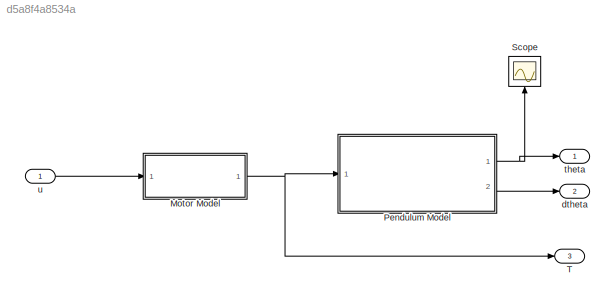
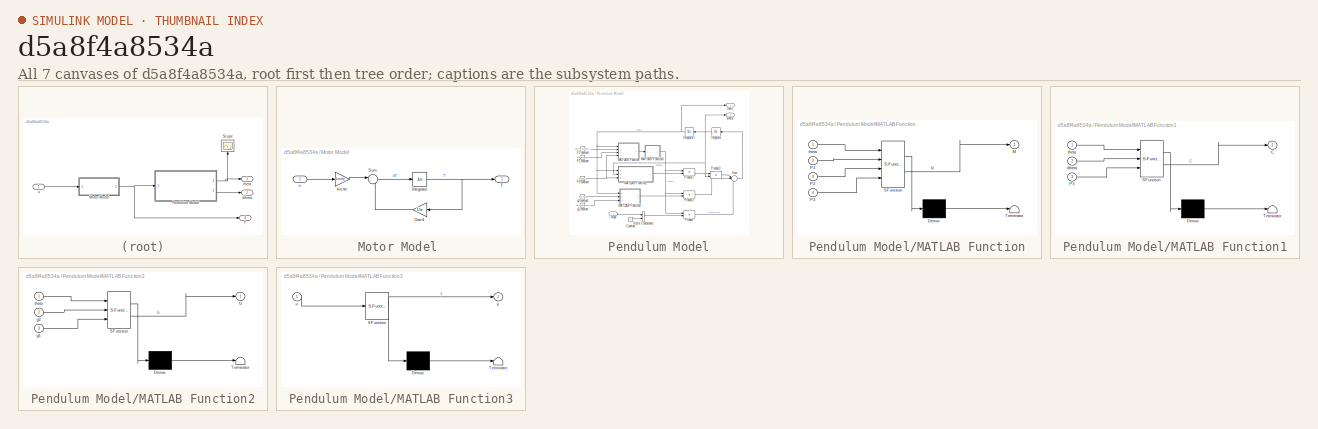
[diagram: thumbnail index - all 7 canvases of the model, root first then tree order]
MODEL slx_d5a8f4a8534a
KIND model
CONFIG AbsTol = auto
CONFIG EnableMultiTasking = off
CONFIG FixedStep = auto
CONFIG MaxStep = auto
CONFIG MinStep = auto
CONFIG RelTol = 1e-3
CONFIG SampleTimeConstraint = Unconstrained
CONFIG SolverName = VariableStepAuto
CONFIG StartTime = 0.0
CONFIG StopTime = 100.0
BLOCK [SubSystem] Motor Model 
  Ports = [1, 1]
  RequestExecContextInheritance = off
BLOCK [Gain] Motor Model /Gain1
  Gain = 1/te
  NameLocation = top
BLOCK [Integrator] Motor Model /Integrator
  Ports = [1, 1]
BLOCK [Sum] Motor Model /Sum
  Inputs = |+-
  Ports = [2, 1]
BLOCK [Outport] Motor Model /T
BLOCK [Gain] Motor Model /km//te 
  Gain = km/te
BLOCK [Inport] Motor Model /u
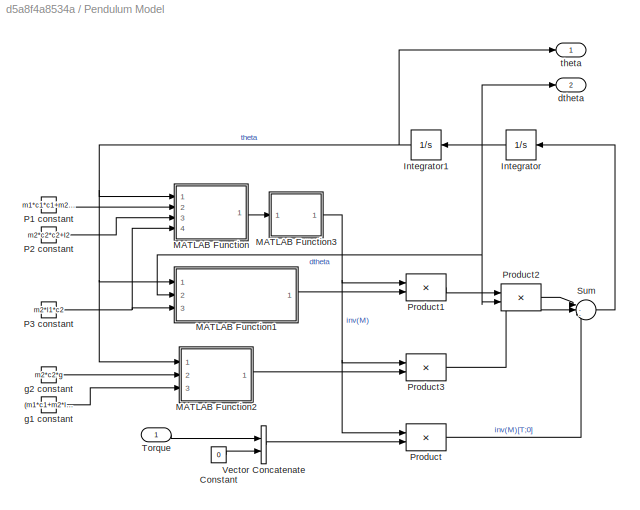
BLOCK [SubSystem] Pendulum Model
  Ports = [1, 2]
  RequestExecContextInheritance = off
BLOCK [Constant] Pendulum Model/Constant
  NameLocation = top
  Value = 0
BLOCK [Integrator] Pendulum Model/Integrator
  InitialCondition = thetadot0
  NameLocation = top
  Ports = [1, 1]
BLOCK [Integrator] Pendulum Model/Integrator1
  InitialCondition = theta0
  NameLocation = top
  Ports = [1, 1]
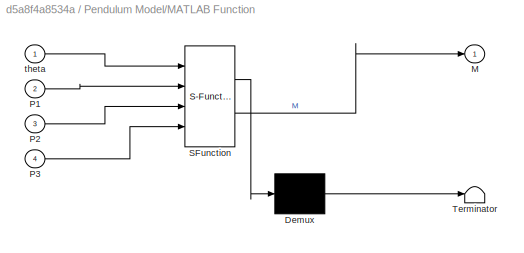
BLOCK [SubSystem] Pendulum Model/MATLAB Function
  ErrorFcn = Stateflow.Translate.translate
  PermitHierarchicalResolution = ExplicitOnly
  Ports = [4, 1]
  RequestExecContextInheritance = off
  SFBlockType = MATLAB Function
  TreatAsAtomicUnit = on
BLOCK [Demux] Pendulum Model/MATLAB Function/ Demux 
  Outputs = 1
  Ports = [1, 1]
BLOCK [S-Function] Pendulum Model/MATLAB Function/ SFunction 
  EnableBusSupport = on
  FunctionName = sf_sfun
  PortCounts = [4 2]
  Ports = [4, 2]
  SFcnIsStateOwnerBlock = off
  SFunctionDeploymentMode = off
  Tag = Stateflow S-Function 5
BLOCK [Terminator] Pendulum Model/MATLAB Function/ Terminator 
BLOCK [Outport] Pendulum Model/MATLAB Function/M
BLOCK [Inport] Pendulum Model/MATLAB Function/P1
  Port = 2
BLOCK [Inport] Pendulum Model/MATLAB Function/P2
  Port = 3
BLOCK [Inport] Pendulum Model/MATLAB Function/P3
  Port = 4
BLOCK [Inport] Pendulum Model/MATLAB Function/theta
BLOCK [SubSystem] Pendulum Model/MATLAB Function1
  ErrorFcn = Stateflow.Translate.translate
  PermitHierarchicalResolution = ExplicitOnly
  Ports = [3, 1]
  RequestExecContextInheritance = off
  SFBlockType = MATLAB Function
  TreatAsAtomicUnit = on
BLOCK [Demux] Pendulum Model/MATLAB Function1/ Demux 
  Outputs = 1
  Ports = [1, 1]
BLOCK [S-Function] Pendulum Model/MATLAB Function1/ SFunction 
  EnableBusSupport = on
  FunctionName = sf_sfun
  Parameters = b1,b2
  PortCounts = [3 2]
  Ports = [3, 2]
  SFcnIsStateOwnerBlock = off
  SFunctionDeploymentMode = off
  Tag = Stateflow S-Function 6
BLOCK [Terminator] Pendulum Model/MATLAB Function1/ Terminator 
BLOCK [Outport] Pendulum Model/MATLAB Function1/C
BLOCK [Inport] Pendulum Model/MATLAB Function1/P3
  Port = 3
BLOCK [Inport] Pendulum Model/MATLAB Function1/dtheta
  Port = 2
BLOCK [Inport] Pendulum Model/MATLAB Function1/theta
BLOCK [SubSystem] Pendulum Model/MATLAB Function2
  ErrorFcn = Stateflow.Translate.translate
  PermitHierarchicalResolution = ExplicitOnly
  Ports = [3, 1]
  RequestExecContextInheritance = off
  SFBlockType = MATLAB Function
  TreatAsAtomicUnit = on
BLOCK [Demux] Pendulum Model/MATLAB Function2/ Demux 
  Outputs = 1
  Ports = [1, 1]
BLOCK [S-Function] Pendulum Model/MATLAB Function2/ SFunction 
  EnableBusSupport = on
  FunctionName = sf_sfun
  PortCounts = [3 2]
  Ports = [3, 2]
  SFcnIsStateOwnerBlock = off
  SFunctionDeploymentMode = off
  Tag = Stateflow S-Function 7
BLOCK [Terminator] Pendulum Model/MATLAB Function2/ Terminator 
BLOCK [Outport] Pendulum Model/MATLAB Function2/G
BLOCK [Inport] Pendulum Model/MATLAB Function2/g1
  Port = 3
BLOCK [Inport] Pendulum Model/MATLAB Function2/g2
  Port = 2
BLOCK [Inport] Pendulum Model/MATLAB Function2/theta
BLOCK [SubSystem] Pendulum Model/MATLAB Function3
  ErrorFcn = Stateflow.Translate.translate
  PermitHierarchicalResolution = ExplicitOnly
  Ports = [1, 1]
  RequestExecContextInheritance = off
  SFBlockType = MATLAB Function
  TreatAsAtomicUnit = on
BLOCK [Demux] Pendulum Model/MATLAB Function3/ Demux 
  Outputs = 1
  Ports = [1, 1]
BLOCK [S-Function] Pendulum Model/MATLAB Function3/ SFunction 
  EnableBusSupport = on
  FunctionName = sf_sfun
  PortCounts = [1 2]
  Ports = [1, 2]
  SFcnIsStateOwnerBlock = off
  SFunctionDeploymentMode = off
  Tag = Stateflow S-Function 8
BLOCK [Terminator] Pendulum Model/MATLAB Function3/ Terminator 
BLOCK [Inport] Pendulum Model/MATLAB Function3/u
BLOCK [Outport] Pendulum Model/MATLAB Function3/y
BLOCK [Constant] Pendulum Model/P1 constant
  Value = m1*c1*c1+m2*l1*l1+I1
BLOCK [Constant] Pendulum Model/P2 constant
  Value = m2*c2*c2+I2
BLOCK [Constant] Pendulum Model/P3 constant
  Value = m2*l1*c2
BLOCK [Product] Pendulum Model/Product
  Multiplication = Matrix(*)
  Ports = [2, 1]
BLOCK [Product] Pendulum Model/Product1
  Multiplication = Matrix(*)
  Ports = [2, 1]
BLOCK [Product] Pendulum Model/Product2
  Multiplication = Matrix(*)
  Ports = [2, 1]
BLOCK [Product] Pendulum Model/Product3
  Multiplication = Matrix(*)
  Ports = [2, 1]
BLOCK [Sum] Pendulum Model/Sum
  Inputs = |--+
  Ports = [3, 1]
BLOCK [Inport] Pendulum Model/Torque
BLOCK [Concatenate] Pendulum Model/Vector Concatenate
  Ports = [2, 1]
BLOCK [Outport] Pendulum Model/dtheta
  Port = 2
BLOCK [Constant] Pendulum Model/g1 constant
  Value = (m1*c1+m2*l1)*g
BLOCK [Constant] Pendulum Model/g2 constant
  Value = m2*c2*g
BLOCK [Outport] Pendulum Model/theta
BLOCK [Scope] Scope
  Floating = off
  NameLocation = right
  NumInputPorts = 1
  Ports = [1]
  ScopeSpecificationString = Simulink.scopes.TimeScopeBlockCfg('CurrentConfiguration', extmgr.ConfigurationSet(extmgr.Configuration('Core','General UI',true),extmgr.Configuration('Core','Source UI',true),extmgr.Configuration('Sources','WiredSimulink',true,'DataLoggingVariableName','NlData','DataLoggingSaveFormat','Array'),extmgr.Configuration('Visuals','Time Domain',true,'SerializedDisplays',{struct('MinYLimReal','-1.4546','M...<+1475ch>
BLOCK [Outport] T
  Port = 3
BLOCK [Outport] dtheta
  Port = 2
BLOCK [Outport] theta
BLOCK [Inport] u
LINE Motor Model /Gain1:1 -> Motor Model /Sum:2
NET Motor Model /Integrator:1 -> Motor Model /Gain1:1, Motor Model /T:1
LINE Motor Model /Sum:1 -> Motor Model /Integrator:1
LINE Motor Model /km//te :1 -> Motor Model /Sum:1
LINE Motor Model /u:1 -> Motor Model /km//te :1
NET Motor Model :1 -> Pendulum Model:1, T:1
LINE Pendulum Model/Constant:1 -> Pendulum Model/Vector Concatenate:2
NET Pendulum Model/Integrator1:1 -> Pendulum Model/MATLAB Function1:1, Pendulum Model/MATLAB Function2:1, Pendulum Model/MATLAB Function:1, Pendulum Model/theta:1
NET Pendulum Model/Integrator:1 -> Pendulum Model/Integrator1:1, Pendulum Model/MATLAB Function1:2, Pendulum Model/Product2:2, Pendulum Model/dtheta:1
LINE Pendulum Model/MATLAB Function1:1 -> Pendulum Model/Product1:2
LINE Pendulum Model/MATLAB Function2:1 -> Pendulum Model/Product3:2
NET Pendulum Model/MATLAB Function3:1 -> Pendulum Model/Product1:1, Pendulum Model/Product3:1, Pendulum Model/Product:1
LINE Pendulum Model/MATLAB Function:1 -> Pendulum Model/MATLAB Function3:1
LINE Pendulum Model/P1 constant:1 -> Pendulum Model/MATLAB Function:2
LINE Pendulum Model/P2 constant:1 -> Pendulum Model/MATLAB Function:3
NET Pendulum Model/P3 constant:1 -> Pendulum Model/MATLAB Function1:3, Pendulum Model/MATLAB Function:4
LINE Pendulum Model/Product1:1 -> Pendulum Model/Product2:1
LINE Pendulum Model/Product2:1 -> Pendulum Model/Sum:1
LINE Pendulum Model/Product3:1 -> Pendulum Model/Sum:2
LINE Pendulum Model/Product:1 -> Pendulum Model/Sum:3
LINE Pendulum Model/Sum:1 -> Pendulum Model/Integrator:1
LINE Pendulum Model/Torque:1 -> Pendulum Model/Vector Concatenate:1
LINE Pendulum Model/Vector Concatenate:1 -> Pendulum Model/Product:2
LINE Pendulum Model/g1 constant:1 -> Pendulum Model/MATLAB Function2:3
LINE Pendulum Model/g2 constant:1 -> Pendulum Model/MATLAB Function2:2
NET Pendulum Model:1 -> Scope:1, theta:1
LINE Pendulum Model:2 -> dtheta:1
LINE u:1 -> Motor Model :1
note: NET lines group one-source signal fan-out (src -> all destinations, sorted); 1:1 wires keep LINE
CHART Pendulum Model/MATLAB Function states=1 transitions=1
  STATE_LABEL 'eML_blk_kernel()'
  STATE_LABEL 'SCRIPT:\nfunction M = M_matrix(theta,P1, P2, P3)\n    M = [P1+P2+2*P3*cos(theta(2)) P2+P3*cos(theta(2));\n         P2+P3*cos(theta(2))      P2];\n'
CHART Pendulum Model/MATLAB Function1 states=1 transitions=1
  STATE_LABEL 'eML_blk_kernel()'
  STATE_LABEL 'SCRIPT:\nfunction C = C_matrix(theta, dtheta,b1,b2, P3)\nC = [b1-P3*dtheta(2)*sin(theta(2))  -P3*(dtheta(1)+dtheta(2))*sin(theta(2));\n     P3*dtheta(1)*sin(theta(2))     b2];\n'
CHART Pendulum Model/MATLAB Function2 states=1 transitions=1
  STATE_LABEL 'eML_blk_kernel()'
  STATE_LABEL 'SCRIPT:\nfunction G = G_matrix(theta,g2, g1)\nG = [-g1*sin(theta(1))-g2*sin(theta(1)+theta(2));\n     -g2*sin(theta(1)+theta(2))];\n'
CHART Pendulum Model/MATLAB Function3 states=1 transitions=1
  STATE_LABEL 'eML_blk_kernel()'
  STATE_LABEL 'SCRIPT:\nfunction y = inverse(u)\ny = inv(u);\n'
CHART  states=0 transitions=0
CHART  states=0 transitions=0
CHART  states=0 transitions=0
CHART  states=0 transitions=0
